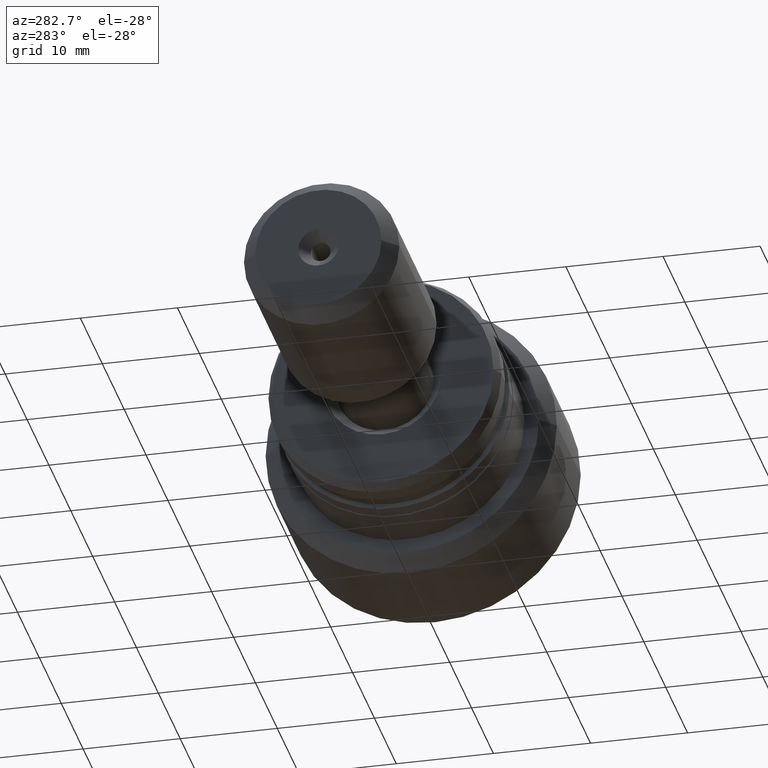
[diagram: clean part render]
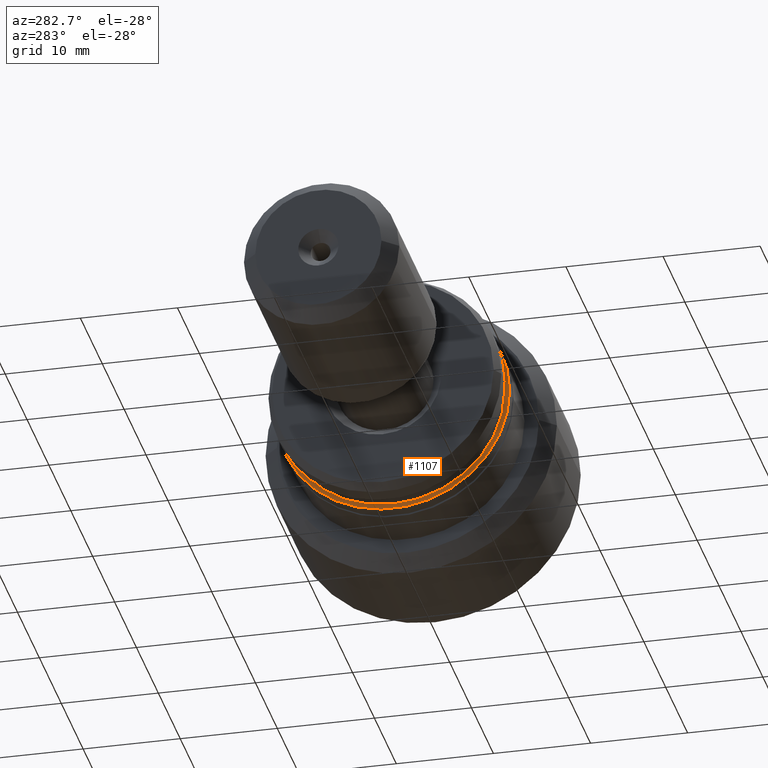
[diagram: same view with one face highlighted and labeled with its STEP entity id]
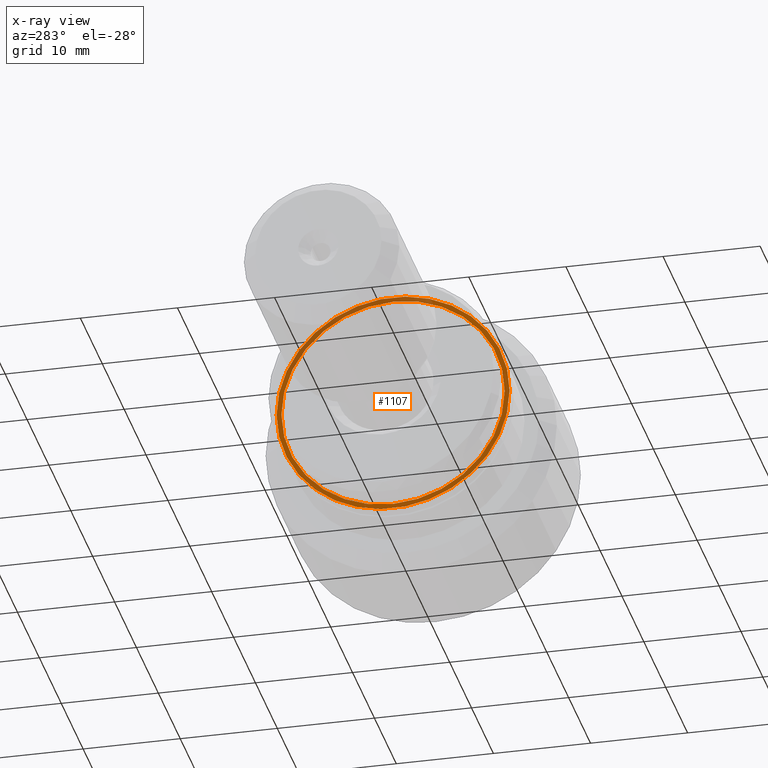
[diagram: x-ray of the same camera — body ghosted, the highlighted face saturated]
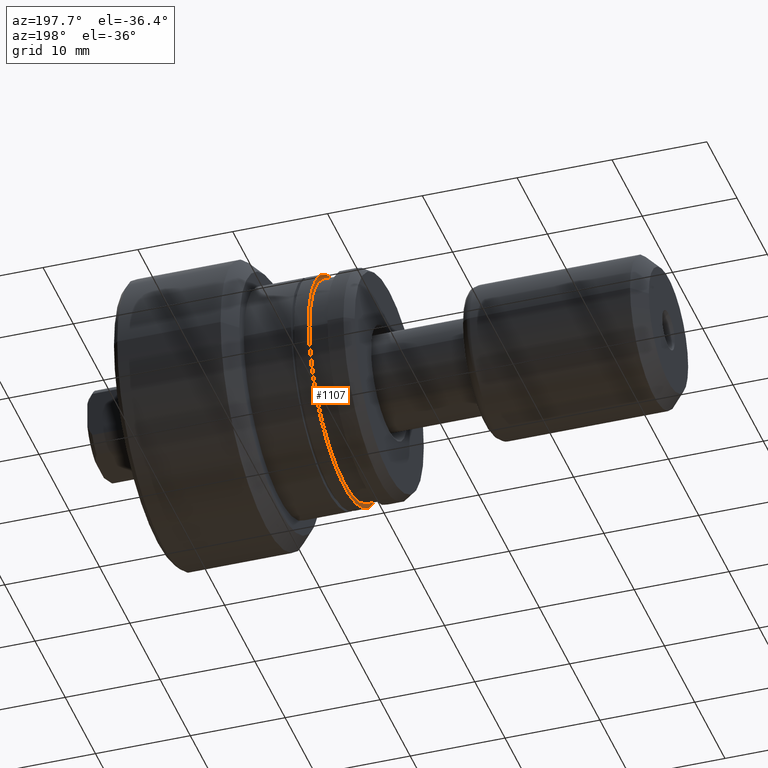
[diagram: same view with one face highlighted and labeled with its STEP entity id]
A machine part, auxiliary view. The second image highlights one B-rep face of the part: STEP entity #1107.
The next image is the same camera in x-ray: the body ghosted, the highlighted face saturated — about 24% of this face is hidden behind the body in this view.
A second angle (auxiliary view) of the same face is appended — the face is thin or edge-on in the first view.
In plain terms, the highlighted planar face has unit normal (-1, 0, 0).
Its self-contained STEP definition (entity closure, byte-faithful):
#62 = VERTEX_POINT ( 'NONE', #285 ) ;
#73 = EDGE_CURVE ( 'NONE', #1176, #62, #1079, .T. ) ;
#107 = CIRCLE ( 'NONE', #2359, 11.49999999999998934 ) ;
#186 = EDGE_LOOP ( 'NONE', ( #2229, #910 ) ) ;
#203 = DIRECTION ( 'NONE',  ( -5.782411586589358625E-16, -1.000000000000000000, 0.000000000000000000 ) ) ;
#218 = EDGE_CURVE ( 'NONE', #1512, #1780, #918, .T. ) ;
#285 = CARTESIAN_POINT ( 'NONE',  ( -19.80000000000000782, -12.00000000000000355, 0.000000000000000000 ) ) ;
#321 = DIRECTION ( 'NONE',  ( -1.000000000000000000, 6.415603269213350828E-16, -0.000000000000000000 ) ) ;
#341 = CARTESIAN_POINT ( 'NONE',  ( -19.80000000000000071, -6.723566832492926967E-15, 0.000000000000000000 ) ) ;
#496 = AXIS2_PLACEMENT_3D ( 'NONE', #1350, #2261, #1717 ) ;
#541 = CARTESIAN_POINT ( 'NONE',  ( -19.80000000000000782, -11.49999999999999645, 0.000000000000000000 ) ) ;
#645 = CARTESIAN_POINT ( 'NONE',  ( -19.80000000000000782, -11.49999999999999645, 0.000000000000000000 ) ) ;
#909 = DIRECTION ( 'NONE',  ( -6.033820786006290648E-16, -1.000000000000000000, 0.000000000000000000 ) ) ;
#910 = ORIENTED_EDGE ( 'NONE', *, *, #989, .F. ) ;
#918 = CIRCLE ( 'NONE', #496, 11.49999999999998934 ) ;
#956 = CARTESIAN_POINT ( 'NONE',  ( -19.80000000000000071, -6.723566832492926967E-15, 0.000000000000000000 ) ) ;
#989 = EDGE_CURVE ( 'NONE', #1780, #1512, #107, .T. ) ;
#1034 = CARTESIAN_POINT ( 'NONE',  ( -19.79999999999999361, 11.99999999999998934, 1.469576158976823553E-15 ) ) ;
#1058 = CIRCLE ( 'NONE', #1325, 11.99999999999999645 ) ;
#1074 = DIRECTION ( 'NONE',  ( -5.782411586589358625E-16, -1.000000000000000000, 0.000000000000000000 ) ) ;
#1079 = CIRCLE ( 'NONE', #1232, 11.99999999999999645 ) ;
#1107 = ADVANCED_FACE ( 'NONE', ( #1131, #1288 ), #1476, .T. ) ;
#1131 = FACE_OUTER_BOUND ( 'NONE', #1916, .T. ) ;
#1176 = VERTEX_POINT ( 'NONE', #1034 ) ;
#1232 = AXIS2_PLACEMENT_3D ( 'NONE', #2012, #321, #1074 ) ;
#1281 = DIRECTION ( 'NONE',  ( -1.000000000000000000, 6.415603269213350828E-16, -0.000000000000000000 ) ) ;
#1288 = FACE_BOUND ( 'NONE', #186, .T. ) ;
#1325 = AXIS2_PLACEMENT_3D ( 'NONE', #956, #1281, #203 ) ;
#1350 = CARTESIAN_POINT ( 'NONE',  ( -19.80000000000000071, -6.723566832492926967E-15, 0.000000000000000000 ) ) ;
#1476 = PLANE ( 'NONE',  #2027 ) ;
#1512 = VERTEX_POINT ( 'NONE', #645 ) ;
#1557 = ORIENTED_EDGE ( 'NONE', *, *, #73, .T. ) ;
#1717 = DIRECTION ( 'NONE',  ( -6.033820786006290648E-16, -1.000000000000000000, 0.000000000000000000 ) ) ;
#1729 = CARTESIAN_POINT ( 'NONE',  ( -19.79999999999999361, 11.49999999999998224, 1.408343819019455190E-15 ) ) ;
#1751 = EDGE_CURVE ( 'NONE', #62, #1176, #1058, .T. ) ;
#1779 = ORIENTED_EDGE ( 'NONE', *, *, #1751, .T. ) ;
#1780 = VERTEX_POINT ( 'NONE', #1729 ) ;
#1854 = DIRECTION ( 'NONE',  ( -1.000000000000000000, 6.415603269213350828E-16, -0.000000000000000000 ) ) ;
#1916 = EDGE_LOOP ( 'NONE', ( #1779, #1557 ) ) ;
#2012 = CARTESIAN_POINT ( 'NONE',  ( -19.80000000000000071, -6.723566832492926967E-15, 0.000000000000000000 ) ) ;
#2021 = DIRECTION ( 'NONE',  ( -6.415603269213350828E-16, -1.000000000000000000, 0.000000000000000000 ) ) ;
#2027 = AXIS2_PLACEMENT_3D ( 'NONE', #541, #2244, #2021 ) ;
#2229 = ORIENTED_EDGE ( 'NONE', *, *, #218, .F. ) ;
#2244 = DIRECTION ( 'NONE',  ( -1.000000000000000000, 6.415603269213350828E-16, 0.000000000000000000 ) ) ;
#2261 = DIRECTION ( 'NONE',  ( -1.000000000000000000, 6.415603269213350828E-16, -0.000000000000000000 ) ) ;
#2359 = AXIS2_PLACEMENT_3D ( 'NONE', #341, #1854, #909 ) ;